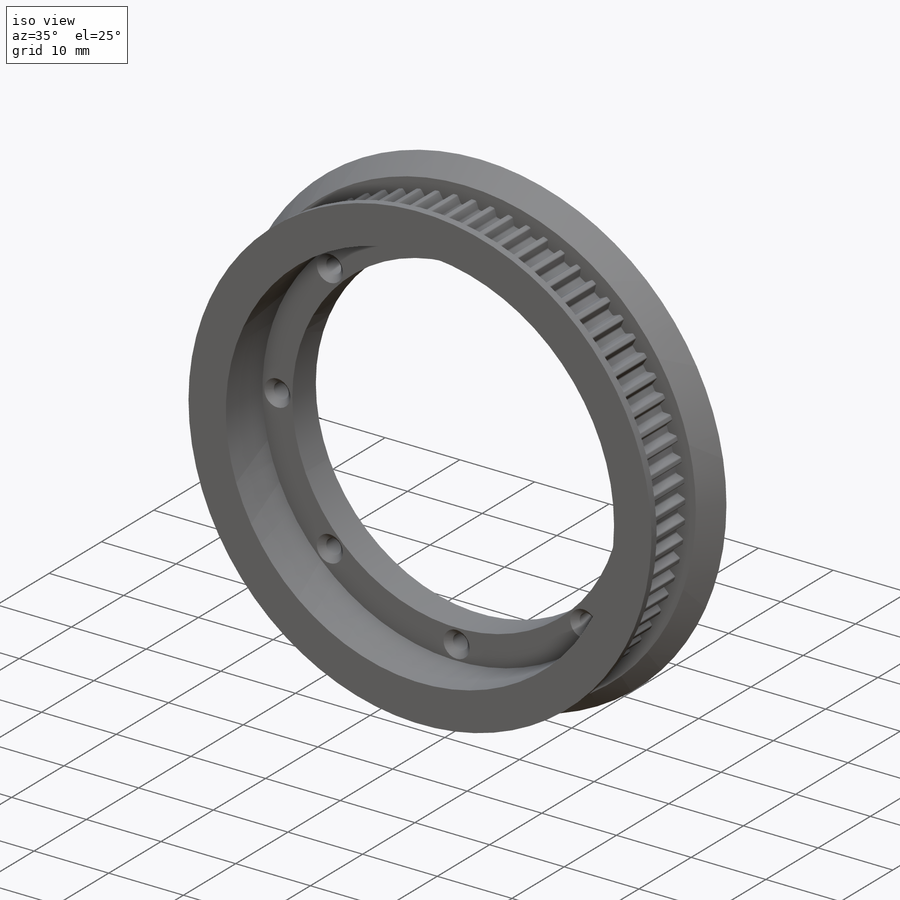
[diagram: iso view]
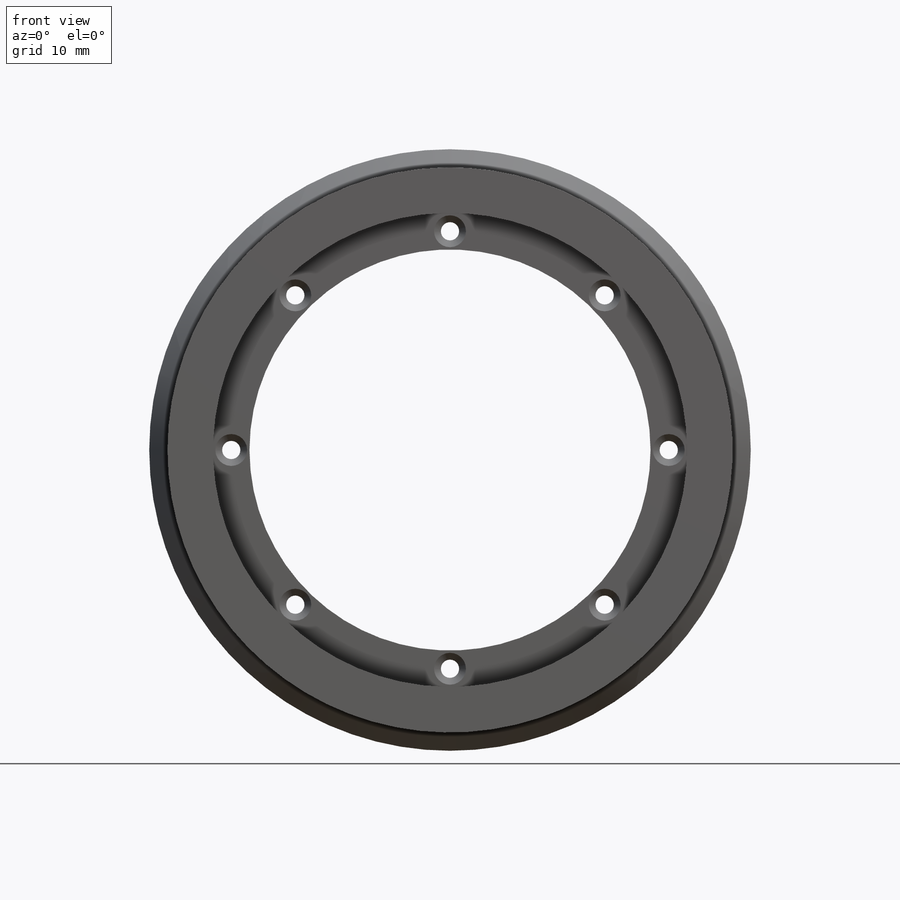
[diagram: front view]
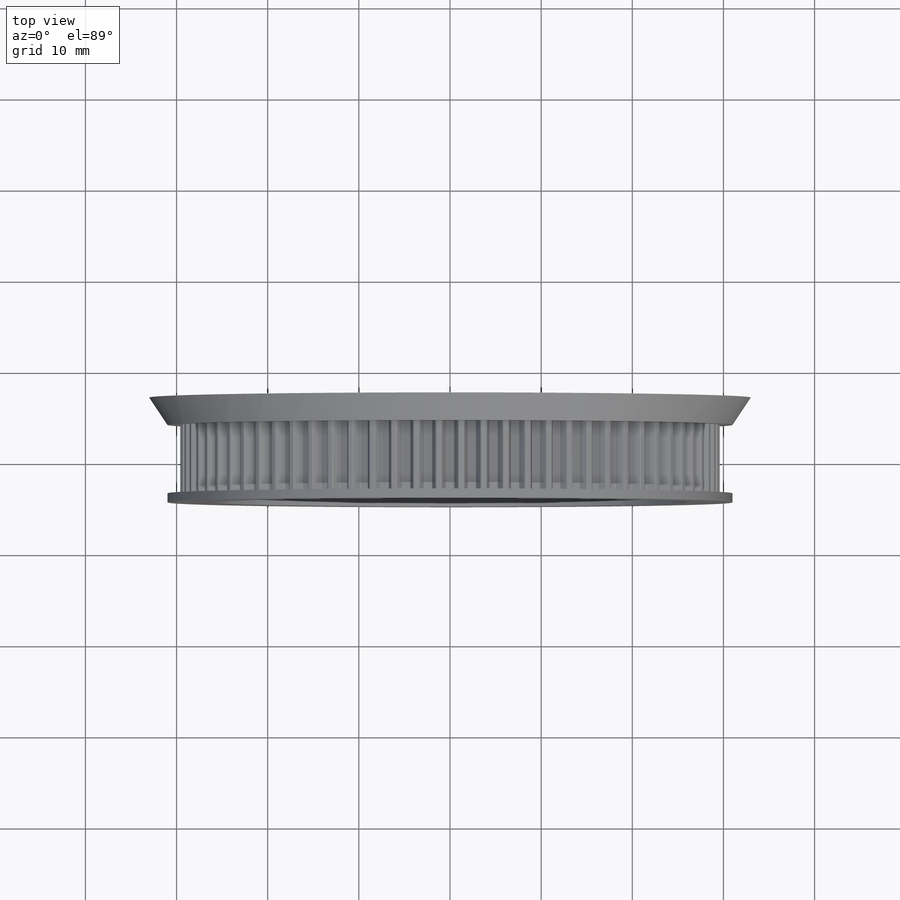
[diagram: top view]
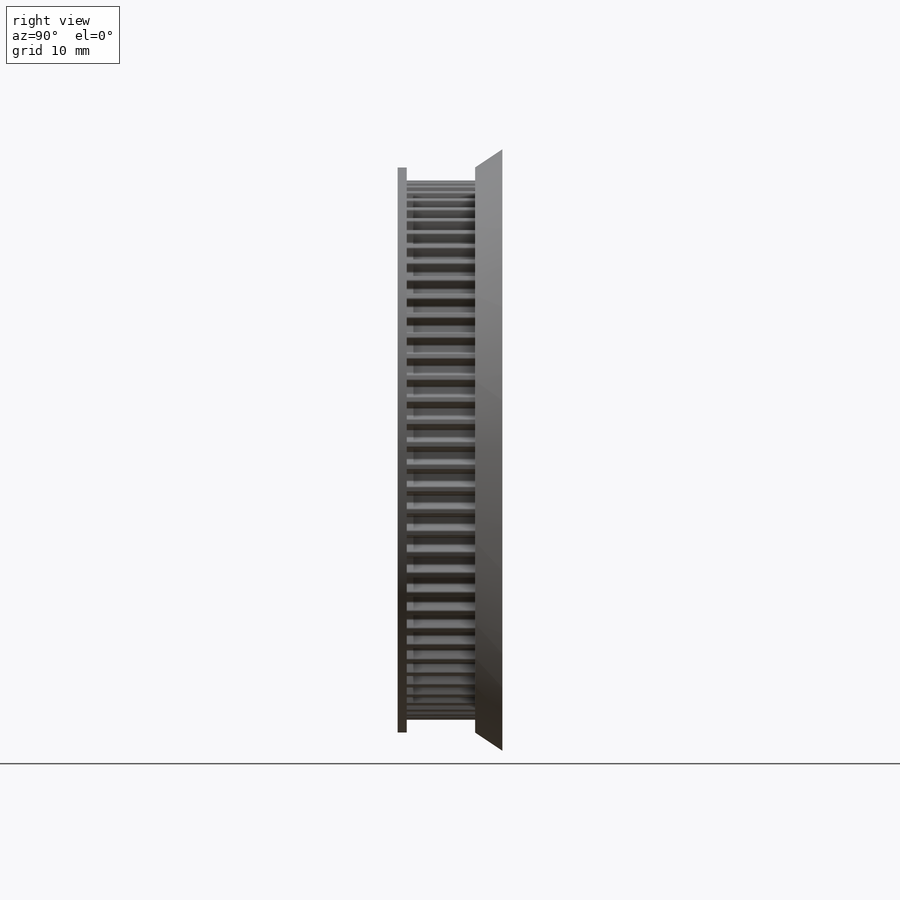
[diagram: right view]
SOLIDWORKS PART (.sldprt)
format: sldprt  version: not decoded by parser v0  size: 1,765,888 bytes
history: native  units: mm
features: plane x6, sketch x6, extrude x3, material x1, move_body x1, cut_extrude x1, chamfer x1, hole x1 + 4 further entries (+14 scaffold rows collapsed; 3 parser-record rows omitted)
feature tree (41):
  scaffold x14  (default folders/planes/origin — collapsed)
  material  "PVC hart"
  plane  "Ebene vorne"
  plane  "Ebene oben"
  plane  "Ebene rechts"
  plane  "Ebene vorne-Zahnriemenrad T2.5 B6 ab Z20"
  plane  "Ebene oben-Zahnriemenrad T2.5 B6 ab Z20"
  plane  "Ebene rechts-Zahnriemenrad T2.5 B6 ab Z20"
  "Zahnriemenrad T2.5 B6 ab Z20"
  parser-record x3  (decoder bookkeeping rows leaked as tree rows — omitted from the tree; the rows remain in map.json)
  move_body  "Körper-Verschieben/Kopieren2"
  "Deckungsgleich2"
  "Deckungsgleich3"
  "Deckungsgleich4"
  sketch  "Skizze2"  dims[D1=52.0mm]
  cut_extrude  "Schnitt-Linear austragen2"  [1 undecoded]
  sketch  "Skizze3"  dims[D1=7.0mm]
  extrude  "Aufsatz-Linear austragen1"  Depth=3mm
  sketch  "Skizze4"  dims[D1=5.0mm]
  extrude  "Aufsatz-Linear austragen2"  Depth=1mm
  sketch  "Skizze5"  dims[D1=44.0mm]
  extrude  "Aufsatz-Linear austragen3"  Depth=7mm
  chamfer  "Fase1"  Distance=3mm
  hole  "Formsenkung für M3 Senkschraube mit Innensechskant1"  Diameter=2mm Depth=4.5mm
  sketch  "Skizze7"  dims[c1.D2=47.0mm c1.D1=~23.539584mm c2.D1=45.0deg]
  sketch  "Skizze6"  dims[hole-wizard template sketch: 55 standard entries collapsed; hole parameters kept: c17.Bohrungstiefe=4.5mm c17.Senkdurchmesser (Oben)=3.5mm c17.D4=~3.666174mm c17.Senkwinkel (Oben)=90.0deg]
decode coverage: 11 of 13 modeling features carry decoded parameters; 4 rows unclassified (native names shown)
note: ~ marks probable driven/reference dimensions
note: 1 parameter value undecoded
note: suppression state not decoded; provenance and decode notes live in map.json
